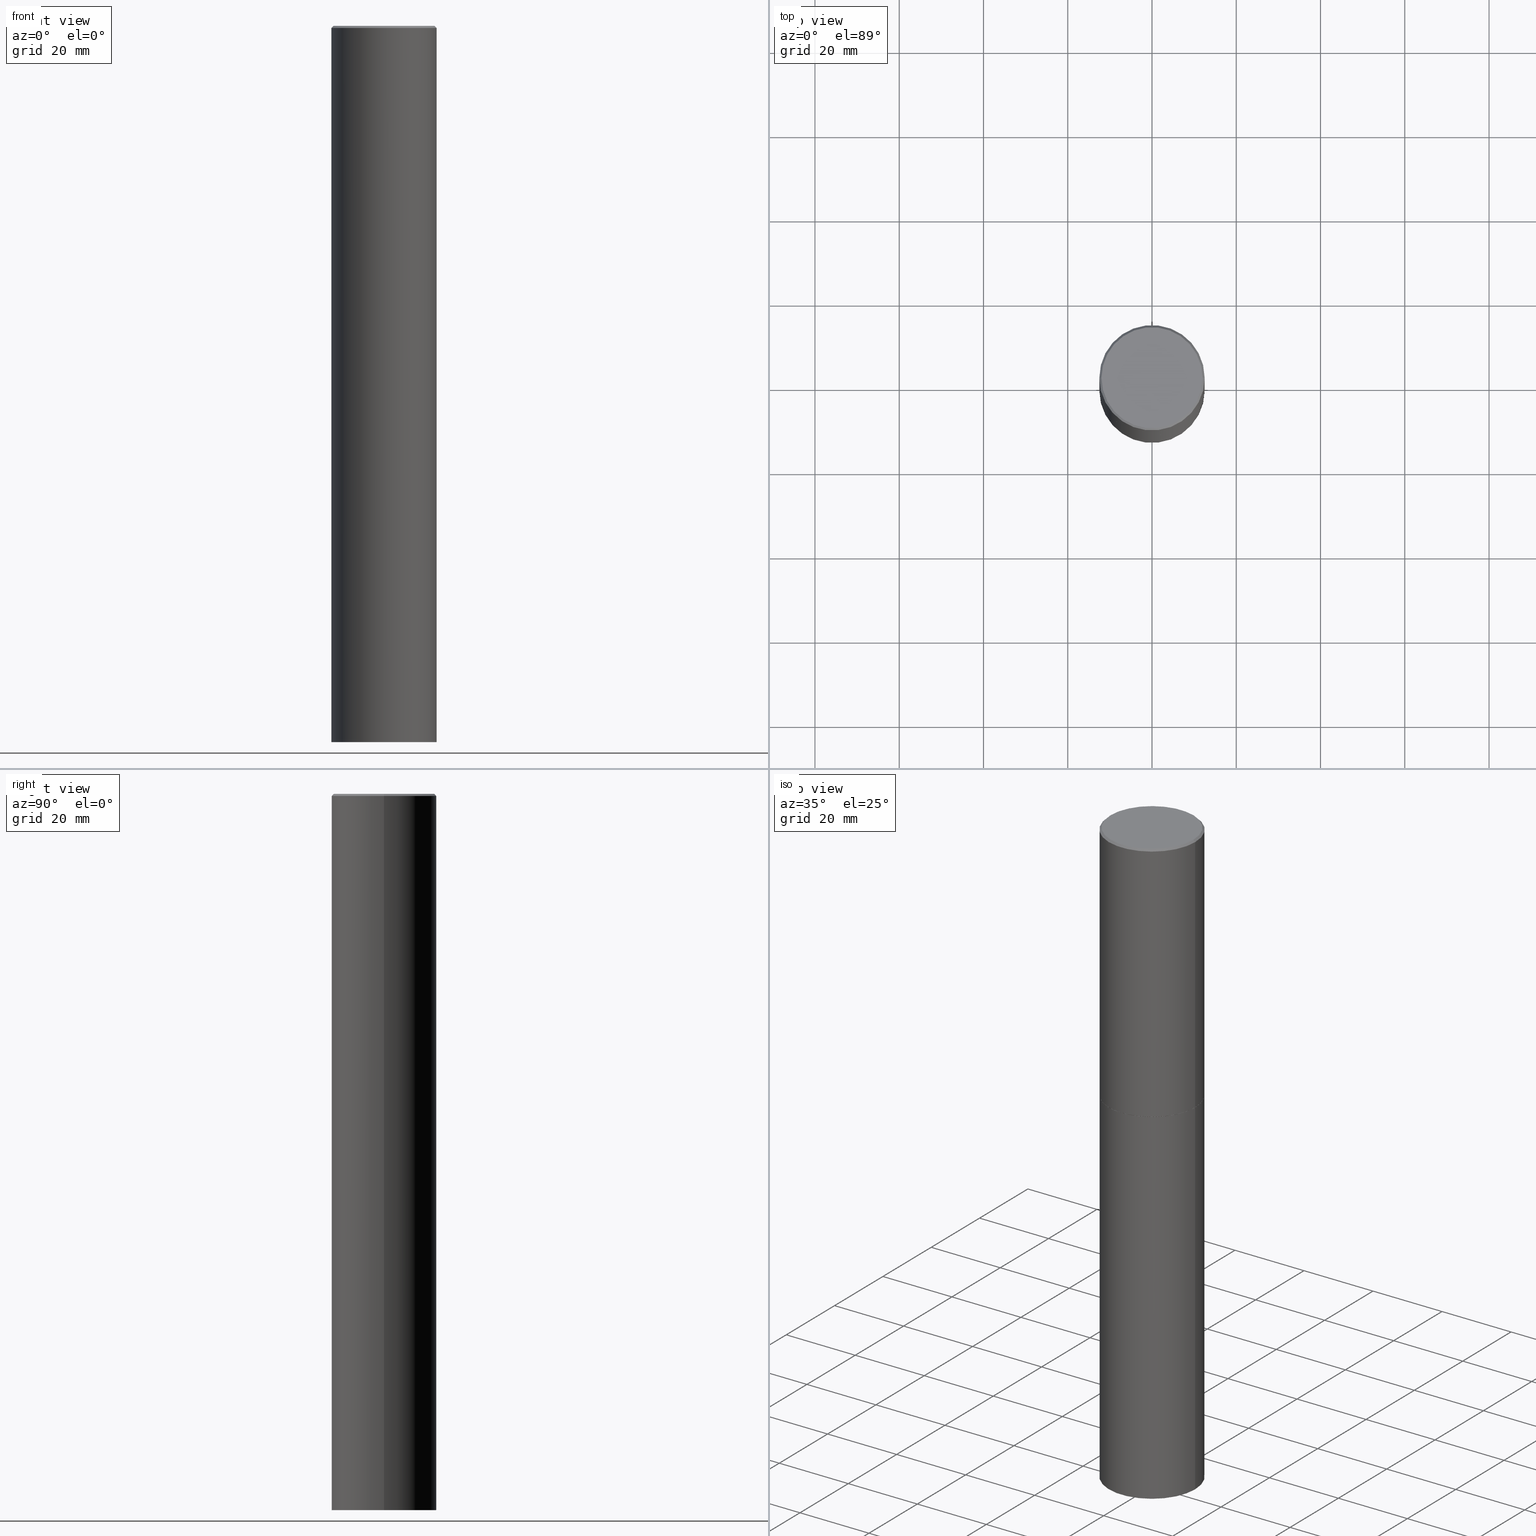
[diagram: canonical four-view strip — front | top / right | iso, engineering-drawing reading convention]
A machine part, canonical four-view strip (front | top / right | iso — engineering-drawing reading convention). The complete STEP part file that produces these views, byte-faithful:
ISO-10303-21;
HEADER;
FILE_DESCRIPTION (( 'STEP AP203' ),
    '1' );
FILE_NAME ('74899.STEP',
    '2024-05-03T15:04:47',
    ( '' ),
    ( '' ),
    'SwSTEP 2.0',
    'SolidWorks 2023',
    '' );
FILE_SCHEMA (( 'CONFIG_CONTROL_DESIGN' ));
ENDSEC;

DATA;
#1 = CC_DESIGN_DATE_AND_TIME_ASSIGNMENT ( #180, #98, ( #148 ) ) ;
#2 = DIRECTION ( 'NONE',  ( 1.000000000000000000, -6.982962677686265922E-15, 4.876176775795935793E-29 ) ) ;
#3 =( NAMED_UNIT ( * ) PLANE_ANGLE_UNIT ( ) SI_UNIT ( $, .RADIAN. ) );
#4 = VECTOR ( 'NONE', #146, 39.37007874015748143 ) ;
#5 = PERSON_AND_ORGANIZATION ( #172, #318 ) ;
#6 = LOCAL_TIME ( 11, 4, 47.00000000000000000, #315 ) ;
#7 = PERSON_AND_ORGANIZATION_ROLE ( 'design_owner' ) ;
#8 = CLOSED_SHELL ( 'NONE', ( #206, #88, #281, #259 ) ) ;
#9 = LINE ( 'NONE', #33, #362 ) ;
#10 = PERSON_AND_ORGANIZATION ( #172, #318 ) ;
#11 = DIRECTION ( 'NONE',  ( 1.000000000000000000, -6.982962677686268288E-15, 0.000000000000000000 ) ) ;
#12 = APPROVAL_STATUS ( 'not_yet_approved' ) ;
#13 = DATE_AND_TIME ( #263, #185 ) ;
#14 = APPROVAL_PERSON_ORGANIZATION ( #293, #177, #93 ) ;
#15 = CC_DESIGN_PERSON_AND_ORGANIZATION_ASSIGNMENT ( #122, #29, ( #96 ) ) ;
#16 = CARTESIAN_POINT ( 'NONE',  ( 0.4921499999999999764, -2.680480053456658516E-14, -6.692899999999999849 ) ) ;
#17 = VERTEX_POINT ( 'NONE', #343 ) ;
#18 = EDGE_LOOP ( 'NONE', ( #276, #35, #357, #208 ) ) ;
#19 = DIRECTION ( 'NONE',  ( -2.445468806185136597E-29, 3.491481338843145583E-15, 1.000000000000000000 ) ) ;
#20 = DIRECTION ( 'NONE',  ( -2.445468806185136597E-29, 3.491481338843145583E-15, 1.000000000000000000 ) ) ;
#21 = AXIS2_PLACEMENT_3D ( 'NONE', #224, #218, #308 ) ;
#22 = PRODUCT_DEFINITION_FORMATION_WITH_SPECIFIED_SOURCE ( 'ANY', '', #274, .NOT_KNOWN. ) ;
#23 = ORIENTED_EDGE ( 'NONE', *, *, #165, .F. ) ;
#24 = DIRECTION ( 'NONE',  ( -2.445468806185136597E-29, 3.491481338843145583E-15, 1.000000000000000000 ) ) ;
#25 = DATE_AND_TIME ( #331, #6 ) ;
#26 = EDGE_CURVE ( 'NONE', #77, #338, #210, .T. ) ;
#27 = VERTEX_POINT ( 'NONE', #129 ) ;
#28 = CARTESIAN_POINT ( 'NONE',  ( -0.4721499999999996255, 3.331920641657999252E-15, 8.537024980177643606E-18 ) ) ;
#29 = PERSON_AND_ORGANIZATION_ROLE ( 'classification_officer' ) ;
#30 = DIRECTION ( 'NONE',  ( -2.445468806185136597E-29, 3.491481338843145583E-15, 1.000000000000000000 ) ) ;
#31 = AXIS2_PLACEMENT_3D ( 'NONE', #283, #187, #245 ) ;
#32 = EDGE_CURVE ( 'NONE', #17, #118, #258, .T. ) ;
#33 = CARTESIAN_POINT ( 'NONE',  ( -0.4911499999999999755, -6.132342775032094079E-15, -2.755900000000000460 ) ) ;
#34 = DIRECTION ( 'NONE',  ( -2.445468806185136597E-29, 3.491481338843145583E-15, 1.000000000000000000 ) ) ;
#35 = ORIENTED_EDGE ( 'NONE', *, *, #82, .T. ) ;
#36 = VECTOR ( 'NONE', #95, 39.37007874015748143 ) ;
#37 = ORIENTED_EDGE ( 'NONE', *, *, #108, .T. ) ;
#38 = CC_DESIGN_DATE_AND_TIME_ASSIGNMENT ( #292, #68, ( #96 ) ) ;
#39 = AXIS2_PLACEMENT_3D ( 'NONE', #133, #284, #78 ) ;
#40 = CYLINDRICAL_SURFACE ( 'NONE', #50, 0.4921499999999999764 ) ;
#41 = SHAPE_DEFINITION_REPRESENTATION ( #335, #322 ) ;
#42 = APPROVAL_STATUS ( 'not_yet_approved' ) ;
#43 = CARTESIAN_POINT ( 'NONE',  ( 0.4921499999999998098, -3.436665081823294593E-15, 2.399810400207968762E-29 ) ) ;
#44 = DIRECTION ( 'NONE',  ( -1.000000000000000000, 6.982962677686265922E-15, 0.000000000000000000 ) ) ;
#45 = CARTESIAN_POINT ( 'NONE',  ( 4.890937612370296805E-31, -6.982962677686323656E-17, -0.02000000000000009409 ) ) ;
#46 = ADVANCED_FACE ( 'NONE', ( #326 ), #49, .F. ) ;
#47 = APPROVAL_ROLE ( '' ) ;
#48 = APPROVAL_ROLE ( '' ) ;
#49 = PLANE ( 'NONE',  #309 ) ;
#50 = AXIS2_PLACEMENT_3D ( 'NONE', #266, #319, #2 ) ;
#51 = ORIENTED_EDGE ( 'NONE', *, *, #103, .T. ) ;
#52 = DIRECTION ( 'NONE',  ( 1.000000000000000000, -6.982962677686265922E-15, 0.000000000000000000 ) ) ;
#53 = EDGE_LOOP ( 'NONE', ( #298, #296, #161, #242 ) ) ;
#54 = DIRECTION ( 'NONE',  ( -1.000000000000000000, 6.982962677686265922E-15, 0.000000000000000000 ) ) ;
#55 = EDGE_LOOP ( 'NONE', ( #211, #301, #324, #132 ) ) ;
#56 = CARTESIAN_POINT ( 'NONE',  ( 0.4911499999999999755, -1.305185554086343731E-14, -2.755900000000000460 ) ) ;
#57 = ADVANCED_FACE ( 'NONE', ( #297 ), #235, .T. ) ;
#58 = VECTOR ( 'NONE', #67, 39.37007874015748143 ) ;
#59 = CARTESIAN_POINT ( 'NONE',  ( 3.436665081823363224E-15, 0.4921499999999903174, -2.755900000000001793 ) ) ;
#60 = AXIS2_PLACEMENT_3D ( 'NONE', #97, #291, #182 ) ;
#61 = LENGTH_MEASURE_WITH_UNIT ( LENGTH_MEASURE( 0.02539999999999999897 ), #260 );
#62 = DIRECTION ( 'NONE',  ( -2.445468806185136877E-29, 3.491481338843145188E-15, 1.000000000000000000 ) ) ;
#63 = CARTESIAN_POINT ( 'NONE',  ( -0.4921499999999996988, 3.366835455046430506E-15, -0.02000000000000009409 ) ) ;
#64 = CC_DESIGN_PERSON_AND_ORGANIZATION_ASSIGNMENT ( #149, #7, ( #274 ) ) ;
#65 = CIRCLE ( 'NONE', #90, 0.4921499999999999764 ) ;
#66 = COORDINATED_UNIVERSAL_TIME_OFFSET ( 5, 0, .BEHIND. ) ;
#67 = DIRECTION ( 'NONE',  ( 0.7071067811865467956, -7.319954787623254468E-15, -0.7071067811865482389 ) ) ;
#68 = DATE_TIME_ROLE ( 'classification_date' ) ;
#69 = AXIS2_PLACEMENT_3D ( 'NONE', #196, #312, #44 ) ;
#70 = DIRECTION ( 'NONE',  ( 1.000000000000000000, -6.982962677686265922E-15, 0.000000000000000000 ) ) ;
#71 = VECTOR ( 'NONE', #164, 39.37007874015748143 ) ;
#72 = EDGE_LOOP ( 'NONE', ( #91, #106, #156, #134 ) ) ;
#73 = DIRECTION ( 'NONE',  ( -1.000000000000000000, 6.982962677686265922E-15, -4.876176775795935793E-29 ) ) ;
#74 = CC_DESIGN_PERSON_AND_ORGANIZATION_ASSIGNMENT ( #10, #119, ( #148 ) ) ;
#75 = DIRECTION ( 'NONE',  ( 1.000000000000000000, -6.982962677686265922E-15, 4.876006802227162976E-29 ) ) ;
#76 = DIRECTION ( 'NONE',  ( 1.000000000000000000, -6.982962677686268288E-15, 0.000000000000000000 ) ) ;
#77 = VERTEX_POINT ( 'NONE', #16 ) ;
#78 = DIRECTION ( 'NONE',  ( 1.000000000000000000, -6.982962677686265922E-15, 0.000000000000000000 ) ) ;
#79 = APPLICATION_CONTEXT ( 'configuration controlled 3d designs of mechanical parts and assemblies' ) ;
#80 = EDGE_LOOP ( 'NONE', ( #154, #286 ) ) ;
#81 = DIRECTION ( 'NONE',  ( -1.000000000000000000, 6.982962677686265922E-15, -4.876176775795935793E-29 ) ) ;
#82 = EDGE_CURVE ( 'NONE', #17, #160, #127, .T. ) ;
#83 = ORIENTED_EDGE ( 'NONE', *, *, #194, .T. ) ;
#84 = DIRECTION ( 'NONE',  ( -2.445468806185136597E-29, 3.491481338843145583E-15, 1.000000000000000000 ) ) ;
#85 = AXIS2_PLACEMENT_3D ( 'NONE', #323, #352, #99 ) ;
#86 = EDGE_CURVE ( 'NONE', #160, #231, #327, .T. ) ;
#87 = DIMENSIONAL_EXPONENTS ( 1.000000000000000000, 0.000000000000000000, 0.000000000000000000, 0.000000000000000000, 0.000000000000000000, 0.000000000000000000, 0.000000000000000000 ) ;
#88 = ADVANCED_FACE ( 'NONE', ( #123 ), #351, .T. ) ;
#89 = MANIFOLD_SOLID_BREP ( 'Body-Move/Copy2[1]', #8 ) ;
#90 = AXIS2_PLACEMENT_3D ( 'NONE', #140, #34, #143 ) ;
#91 = ORIENTED_EDGE ( 'NONE', *, *, #320, .T. ) ;
#92 = DIRECTION ( 'NONE',  ( -2.445468806185136597E-29, 3.491481338843145583E-15, 1.000000000000000000 ) ) ;
#93 = APPROVAL_ROLE ( '' ) ;
#94 = CALENDAR_DATE ( 2024, 3, 5 ) ;
#95 = DIRECTION ( 'NONE',  ( -2.445468806185136877E-29, 3.491481338843145188E-15, 1.000000000000000000 ) ) ;
#96 = SECURITY_CLASSIFICATION ( '', '', #205 ) ;
#97 = CARTESIAN_POINT ( 'NONE',  ( 6.737022014159432629E-29, -9.618681940378981383E-15, -2.754900000000000126 ) ) ;
#98 = DATE_TIME_ROLE ( 'creation_date' ) ;
#99 = DIRECTION ( 'NONE',  ( -1.000000000000000000, 6.982962677686265922E-15, -4.876176775795935793E-29 ) ) ;
#100 = EDGE_CURVE ( 'NONE', #110, #282, #158, .T. ) ;
#101 = EDGE_LOOP ( 'NONE', ( #306, #83, #271, #356 ) ) ;
#102 = DIRECTION ( 'NONE',  ( -2.438088387897960049E-29, 3.491481338843145188E-15, 1.000000000000000000 ) ) ;
#103 = EDGE_CURVE ( 'NONE', #77, #282, #214, .T. ) ;
#104 = ORIENTED_EDGE ( 'NONE', *, *, #26, .T. ) ;
#105 = CARTESIAN_POINT ( 'NONE',  ( -0.4921499999999999764, -1.299821836318722399E-14, -6.692899999999999849 ) ) ;
#106 = ORIENTED_EDGE ( 'NONE', *, *, #181, .T. ) ;
#107 = EDGE_LOOP ( 'NONE', ( #363, #222, #37, #23 ) ) ;
#108 = EDGE_CURVE ( 'NONE', #231, #160, #152, .T. ) ;
#109 = AXIS2_PLACEMENT_3D ( 'NONE', #234, #92, #70 ) ;
#110 = VERTEX_POINT ( 'NONE', #305 ) ;
#111 = CARTESIAN_POINT ( 'NONE',  ( 0.4921499999999999764, -1.305534702220227716E-14, -2.754900000000000126 ) ) ;
#112 = FACE_OUTER_BOUND ( 'NONE', #278, .T. ) ;
#113 = ADVANCED_FACE ( 'NONE', ( #135 ), #163, .T. ) ;
#114 = MECHANICAL_CONTEXT ( 'NONE', #79, 'mechanical' ) ;
#115 = PERSON_AND_ORGANIZATION ( #172, #318 ) ;
#116 = APPLICATION_PROTOCOL_DEFINITION ( 'international standard', 'config_control_design', 1994, #366 ) ;
#117 = VECTOR ( 'NONE', #344, 39.37007874015748143 ) ;
#118 = VERTEX_POINT ( 'NONE', #111 ) ;
#119 = PERSON_AND_ORGANIZATION_ROLE ( 'creator' ) ;
#120 = LINE ( 'NONE', #174, #4 ) ;
#121 = ADVANCED_FACE ( 'NONE', ( #256 ), #317, .T. ) ;
#122 = PERSON_AND_ORGANIZATION ( #172, #318 ) ;
#123 = FACE_OUTER_BOUND ( 'NONE', #332, .T. ) ;
#124 = APPROVAL_STATUS ( 'not_yet_approved' ) ;
#125 = APPROVAL_DATE_TIME ( #295, #216 ) ;
#126 = EDGE_CURVE ( 'NONE', #153, #27, #239, .T. ) ;
#127 = LINE ( 'NONE', #267, #36 ) ;
#128 = VERTEX_POINT ( 'NONE', #285 ) ;
#129 = CARTESIAN_POINT ( 'NONE',  ( 0.4721499999999996255, -3.342703923013973396E-15, 8.537024980224040028E-18 ) ) ;
#130 = ORIENTED_EDGE ( 'NONE', *, *, #193, .F. ) ;
#131 = CARTESIAN_POINT ( 'NONE',  ( 0.000000000000000000, 0.000000000000000000, 0.000000000000000000 ) ) ;
#132 = ORIENTED_EDGE ( 'NONE', *, *, #86, .F. ) ;
#133 = CARTESIAN_POINT ( 'NONE',  ( 4.890937612370296805E-31, -6.982962677686323656E-17, -0.02000000000000009409 ) ) ;
#134 = ORIENTED_EDGE ( 'NONE', *, *, #349, .F. ) ;
#135 = FACE_OUTER_BOUND ( 'NONE', #53, .T. ) ;
#136 = CIRCLE ( 'NONE', #31, 0.4911499999999999755 ) ;
#137 = CC_DESIGN_APPROVAL ( #216, ( #96 ) ) ;
#138 = CARTESIAN_POINT ( 'NONE',  ( 6.739467482965619353E-29, -9.622173421717825968E-15, -2.755900000000000460 ) ) ;
#139 =( CONVERSION_BASED_UNIT ( 'INCH', #61 ) LENGTH_UNIT ( ) NAMED_UNIT ( #87 ) );
#140 = CARTESIAN_POINT ( 'NONE',  ( 6.739467482965618232E-29, -9.622173421717824390E-15, -2.755900000000000016 ) ) ;
#141 = ADVANCED_FACE ( 'NONE', ( #342 ), #313, .T. ) ;
#142 = DIRECTION ( 'NONE',  ( 0.000000000000000000, 0.000000000000000000, 1.000000000000000000 ) ) ;
#143 = DIRECTION ( 'NONE',  ( 1.000000000000000000, -6.982962677686265922E-15, 0.000000000000000000 ) ) ;
#144 = AXIS2_PLACEMENT_3D ( 'NONE', #279, #223, #250 ) ;
#145 = LOCAL_TIME ( 11, 4, 47.00000000000000000, #179 ) ;
#146 = DIRECTION ( 'NONE',  ( -2.445468806185136877E-29, 3.491481338843145188E-15, 1.000000000000000000 ) ) ;
#147 = ORIENTED_EDGE ( 'NONE', *, *, #169, .T. ) ;
#148 = PRODUCT_DEFINITION ( 'UNKNOWN', '', #22, #325 ) ;
#149 = PERSON_AND_ORGANIZATION ( #172, #318 ) ;
#150 = ADVANCED_FACE ( 'NONE', ( #300 ), #157, .T. ) ;
#151 = CALENDAR_DATE ( 2024, 3, 5 ) ;
#152 = CIRCLE ( 'NONE', #39, 0.4921499999999996988 ) ;
#153 = VERTEX_POINT ( 'NONE', #28 ) ;
#154 = ORIENTED_EDGE ( 'NONE', *, *, #320, .F. ) ;
#155 = CARTESIAN_POINT ( 'NONE',  ( 6.737022014159432629E-29, -9.618681940378981383E-15, -2.754900000000000126 ) ) ;
#156 = ORIENTED_EDGE ( 'NONE', *, *, #264, .F. ) ;
#157 = CYLINDRICAL_SURFACE ( 'NONE', #170, 0.4921499999999998098 ) ;
#158 = CIRCLE ( 'NONE', #265, 0.4921499999999999764 ) ;
#159 = APPROVAL_PERSON_ORGANIZATION ( #241, #287, #48 ) ;
#160 = VERTEX_POINT ( 'NONE', #310 ) ;
#161 = ORIENTED_EDGE ( 'NONE', *, *, #165, .T. ) ;
#162 = FACE_OUTER_BOUND ( 'NONE', #212, .T. ) ;
#163 = CONICAL_SURFACE ( 'NONE', #270, 0.4921499999999996988, 0.7853981633974472798 ) ;
#164 = DIRECTION ( 'NONE',  ( 0.7071067811864267805, -2.468850131080992517E-15, 0.7071067811866682540 ) ) ;
#165 = EDGE_CURVE ( 'NONE', #153, #160, #347, .T. ) ;
#166 = CARTESIAN_POINT ( 'NONE',  ( 0.4921499999999996988, -3.446223716380120377E-15, -0.02000000000000009409 ) ) ;
#167 = APPLICATION_PROTOCOL_DEFINITION ( 'international standard', 'config_control_design', 1994, #79 ) ;
#168 = APPROVAL_DATE_TIME ( #25, #177 ) ;
#169 = EDGE_CURVE ( 'NONE', #338, #110, #120, .T. ) ;
#170 = AXIS2_PLACEMENT_3D ( 'NONE', #131, #189, #280 ) ;
#171 = VECTOR ( 'NONE', #336, 39.37007874015748143 ) ;
#172 = PERSON ( 'UNSPECIFIED', 'UNSPECIFIED', 'UNSPECIFIED', ('UNSPECIFIED'), ('UNSPECIFIED'), ('UNSPECIFIED') ) ;
#173 = APPROVAL_DATE_TIME ( #13, #287 ) ;
#174 = CARTESIAN_POINT ( 'NONE',  ( -0.4921499999999999764, 3.496936074043332897E-15, -2.420853904668951509E-29 ) ) ;
#175 = AXIS2_PLACEMENT_3D ( 'NONE', #138, #20, #76 ) ;
#176 = CALENDAR_DATE ( 2024, 3, 5 ) ;
#177 = APPROVAL ( #124, 'UNSPECIFIED' ) ;
#178 = CARTESIAN_POINT ( 'NONE',  ( 0.4911499999999999755, -1.305185554086343731E-14, -2.755900000000000460 ) ) ;
#179 = COORDINATED_UNIVERSAL_TIME_OFFSET ( 5, 0, .BEHIND. ) ;
#180 = DATE_AND_TIME ( #94, #254 ) ;
#181 = EDGE_CURVE ( 'NONE', #128, #17, #9, .T. ) ;
#182 = DIRECTION ( 'NONE',  ( 1.000000000000000000, -6.982962677686265922E-15, 0.000000000000000000 ) ) ;
#183 = CLOSED_SHELL ( 'NONE', ( #141, #57, #232, #113, #150, #121, #46, #311 ) ) ;
#184 = AXIS2_PLACEMENT_3D ( 'NONE', #201, #272, #330 ) ;
#185 = LOCAL_TIME ( 11, 4, 47.00000000000000000, #66 ) ;
#186 = COORDINATED_UNIVERSAL_TIME_OFFSET ( 5, 0, .BEHIND. ) ;
#187 = DIRECTION ( 'NONE',  ( -2.445468806185136597E-29, 3.491481338843145583E-15, 1.000000000000000000 ) ) ;
#188 = CARTESIAN_POINT ( 'NONE',  ( 6.739467482965618232E-29, -9.622173421717824390E-15, -2.755900000000000016 ) ) ;
#189 = DIRECTION ( 'NONE',  ( -2.445468806185136597E-29, 3.491481338843145583E-15, 1.000000000000000000 ) ) ;
#190 = CC_DESIGN_PERSON_AND_ORGANIZATION_ASSIGNMENT ( #5, #261, ( #22 ) ) ;
#191 = CIRCLE ( 'NONE', #195, 0.4921499999999999764 ) ;
#192 = DIRECTION ( 'NONE',  ( 2.438088387897960049E-29, -3.491481338843145188E-15, -1.000000000000000000 ) ) ;
#193 = EDGE_CURVE ( 'NONE', #282, #110, #65, .T. ) ;
#194 = EDGE_CURVE ( 'NONE', #128, #219, #197, .T. ) ;
#195 = AXIS2_PLACEMENT_3D ( 'NONE', #220, #30, #52 ) ;
#196 = CARTESIAN_POINT ( 'NONE',  ( 4.890937612370296805E-31, -6.982962677686323656E-17, -0.02000000000000009409 ) ) ;
#197 = CIRCLE ( 'NONE', #346, 0.4911499999999999755 ) ;
#198 = APPROVAL_PERSON_ORGANIZATION ( #237, #216, #47 ) ;
#199 = EDGE_CURVE ( 'NONE', #27, #231, #348, .T. ) ;
#200 = COORDINATED_UNIVERSAL_TIME_OFFSET ( 5, 0, .BEHIND. ) ;
#201 = CARTESIAN_POINT ( 'NONE',  ( 0.000000000000000000, 0.000000000000000000, 0.000000000000000000 ) ) ;
#202 = DIRECTION ( 'NONE',  ( -2.445468806185136597E-29, 3.491481338843145583E-15, 1.000000000000000000 ) ) ;
#203 = AXIS2_PLACEMENT_3D ( 'NONE', #361, #84, #248 ) ;
#204 = CC_DESIGN_APPROVAL ( #177, ( #22 ) ) ;
#205 = SECURITY_CLASSIFICATION_LEVEL ( 'unclassified' ) ;
#206 = ADVANCED_FACE ( 'NONE', ( #112 ), #40, .T. ) ;
#207 = CARTESIAN_POINT ( 'NONE',  ( 6.739467482965618232E-29, -9.622173421717824390E-15, -2.755900000000000016 ) ) ;
#208 = ORIENTED_EDGE ( 'NONE', *, *, #225, .F. ) ;
#209 = ORIENTED_EDGE ( 'NONE', *, *, #100, .T. ) ;
#210 = CIRCLE ( 'NONE', #109, 0.4921499999999999764 ) ;
#211 = ORIENTED_EDGE ( 'NONE', *, *, #82, .F. ) ;
#212 = EDGE_LOOP ( 'NONE', ( #353, #209 ) ) ;
#213 = PLANE ( 'NONE',  #294 ) ;
#214 = LINE ( 'NONE', #340, #171 ) ;
#215 = ORIENTED_EDGE ( 'NONE', *, *, #26, .F. ) ;
#216 = APPROVAL ( #12, 'UNSPECIFIED' ) ;
#217 = DIRECTION ( 'NONE',  ( 2.438088387897960049E-29, -3.491481338843145188E-15, -1.000000000000000000 ) ) ;
#218 = DIRECTION ( 'NONE',  ( -2.445468806185136597E-29, 3.491481338843145583E-15, 1.000000000000000000 ) ) ;
#219 = VERTEX_POINT ( 'NONE', #178 ) ;
#220 = CARTESIAN_POINT ( 'NONE',  ( 1.636727817291649966E-28, -2.336813545274328780E-14, -6.692899999999999849 ) ) ;
#221 = DIRECTION ( 'NONE',  ( 2.445468806185136597E-29, -3.491481338843145583E-15, -1.000000000000000000 ) ) ;
#222 = ORIENTED_EDGE ( 'NONE', *, *, #199, .T. ) ;
#223 = DIRECTION ( 'NONE',  ( -2.445468806185136597E-29, 3.491481338843145583E-15, 1.000000000000000000 ) ) ;
#224 = CARTESIAN_POINT ( 'NONE',  ( 6.739467482965619353E-29, -9.622173421717825968E-15, -2.755900000000000460 ) ) ;
#225 = EDGE_CURVE ( 'NONE', #118, #231, #268, .T. ) ;
#226 = FACE_OUTER_BOUND ( 'NONE', #107, .T. ) ;
#227 = AXIS2_PLACEMENT_3D ( 'NONE', #307, #334, #75 ) ;
#228 = LOCAL_TIME ( 11, 4, 47.00000000000000000, #186 ) ;
#229 = DIRECTION ( 'NONE',  ( 1.000000000000000000, 0.000000000000000000, 0.000000000000000000 ) ) ;
#230 = PERSON_AND_ORGANIZATION_ROLE ( 'design_supplier' ) ;
#231 = VERTEX_POINT ( 'NONE', #166 ) ;
#232 = ADVANCED_FACE ( 'NONE', ( #226 ), #302, .T. ) ;
#233 = CIRCLE ( 'NONE', #227, 0.4721499999999996255 ) ;
#234 = CARTESIAN_POINT ( 'NONE',  ( 1.636727817291649966E-28, -2.336813545274328780E-14, -6.692899999999999849 ) ) ;
#235 = CYLINDRICAL_SURFACE ( 'NONE', #184, 0.4921499999999998098 ) ;
#236 = DIRECTION ( 'NONE',  ( -0.7071067811864267805, 7.493145998869918709E-15, 0.7071067811866682540 ) ) ;
#237 = PERSON_AND_ORGANIZATION ( #172, #318 ) ;
#238 = DIRECTION ( 'NONE',  ( 1.000000000000000000, -6.982962677686265922E-15, 4.876176775795935793E-29 ) ) ;
#239 = CIRCLE ( 'NONE', #203, 0.4721499999999996255 ) ;
#240 = ORIENTED_EDGE ( 'NONE', *, *, #100, .F. ) ;
#241 = PERSON_AND_ORGANIZATION ( #172, #318 ) ;
#242 = ORIENTED_EDGE ( 'NONE', *, *, #86, .T. ) ;
#243 = DIRECTION ( 'NONE',  ( 1.000000000000000000, -6.982962677686265922E-15, 0.000000000000000000 ) ) ;
#244 = AXIS2_PLACEMENT_3D ( 'NONE', #45, #321, #269 ) ;
#245 = DIRECTION ( 'NONE',  ( 1.000000000000000000, -6.982962677686268288E-15, 0.000000000000000000 ) ) ;
#246 = CARTESIAN_POINT ( 'NONE',  ( 4.890937612370296805E-31, -6.982962677686323656E-17, -0.02000000000000009409 ) ) ;
#247 = ORIENTED_EDGE ( 'NONE', *, *, #103, .F. ) ;
#248 = DIRECTION ( 'NONE',  ( 1.000000000000000000, -6.982962677686265922E-15, 4.876006802227162976E-29 ) ) ;
#249 = ORIENTED_EDGE ( 'NONE', *, *, #126, .T. ) ;
#250 = DIRECTION ( 'NONE',  ( 1.000000000000000000, -6.982962677686265922E-15, 4.876176775795935793E-29 ) ) ;
#251 = EDGE_LOOP ( 'NONE', ( #249, #333 ) ) ;
#252 = CC_DESIGN_PERSON_AND_ORGANIZATION_ASSIGNMENT ( #115, #230, ( #22 ) ) ;
#253 = VECTOR ( 'NONE', #62, 39.37007874015748143 ) ;
#254 = LOCAL_TIME ( 11, 4, 47.00000000000000000, #200 ) ;
#255 =( NAMED_UNIT ( * ) SI_UNIT ( $, .STERADIAN. ) SOLID_ANGLE_UNIT ( ) );
#256 = FACE_OUTER_BOUND ( 'NONE', #101, .T. ) ;
#257 = CARTESIAN_POINT ( 'NONE',  ( 0.000000000000000000, 0.000000000000000000, 0.000000000000000000 ) ) ;
#258 = CIRCLE ( 'NONE', #60, 0.4921499999999999764 ) ;
#259 = ADVANCED_FACE ( 'NONE', ( #364 ), #277, .T. ) ;
#260 =( LENGTH_UNIT ( ) NAMED_UNIT ( * ) SI_UNIT ( $, .METRE. ) );
#261 = PERSON_AND_ORGANIZATION_ROLE ( 'creator' ) ;
#262 = ORIENTED_EDGE ( 'NONE', *, *, #275, .T. ) ;
#263 = CALENDAR_DATE ( 2024, 3, 5 ) ;
#264 = EDGE_CURVE ( 'NONE', #118, #17, #350, .T. ) ;
#265 = AXIS2_PLACEMENT_3D ( 'NONE', #207, #24, #365 ) ;
#266 = CARTESIAN_POINT ( 'NONE',  ( 0.000000000000000000, 0.000000000000000000, 0.000000000000000000 ) ) ;
#267 = CARTESIAN_POINT ( 'NONE',  ( -0.4921499999999998098, 3.496936074043331714E-15, -2.420853904668950949E-29 ) ) ;
#268 = LINE ( 'NONE', #43, #253 ) ;
#269 = DIRECTION ( 'NONE',  ( 1.000000000000000000, -6.982962677686265922E-15, 0.000000000000000000 ) ) ;
#270 = AXIS2_PLACEMENT_3D ( 'NONE', #246, #221, #54 ) ;
#271 = ORIENTED_EDGE ( 'NONE', *, *, #349, .T. ) ;
#272 = DIRECTION ( 'NONE',  ( -2.445468806185136597E-29, 3.491481338843145583E-15, 1.000000000000000000 ) ) ;
#273 = EDGE_LOOP ( 'NONE', ( #359, #262, #51, #240 ) ) ;
#274 = PRODUCT ( '74899', '74899', '', ( #114 ) ) ;
#275 = EDGE_CURVE ( 'NONE', #338, #77, #191, .T. ) ;
#276 = ORIENTED_EDGE ( 'NONE', *, *, #264, .T. ) ;
#277 = CYLINDRICAL_SURFACE ( 'NONE', #144, 0.4921499999999999764 ) ;
#278 = EDGE_LOOP ( 'NONE', ( #104, #147, #130, #247 ) ) ;
#279 = CARTESIAN_POINT ( 'NONE',  ( 0.000000000000000000, 0.000000000000000000, 0.000000000000000000 ) ) ;
#280 = DIRECTION ( 'NONE',  ( 1.000000000000000000, -6.982962677686265922E-15, 4.876176775795935793E-29 ) ) ;
#281 = ADVANCED_FACE ( 'NONE', ( #162 ), #354, .F. ) ;
#282 = VERTEX_POINT ( 'NONE', #329 ) ;
#283 = CARTESIAN_POINT ( 'NONE',  ( 6.739467482965619353E-29, -9.622173421717825968E-15, -2.755900000000000460 ) ) ;
#284 = DIRECTION ( 'NONE',  ( -2.445468806185136597E-29, 3.491481338843145583E-15, 1.000000000000000000 ) ) ;
#285 = CARTESIAN_POINT ( 'NONE',  ( -0.4911499999999999755, -6.127044320683872466E-15, -2.755900000000000460 ) ) ;
#286 = ORIENTED_EDGE ( 'NONE', *, *, #194, .F. ) ;
#287 = APPROVAL ( #42, 'UNSPECIFIED' ) ;
#288 = AXIS2_PLACEMENT_3D ( 'NONE', #59, #217, #81 ) ;
#289 = CARTESIAN_POINT ( 'NONE',  ( 0.4921499999999996988, -3.446223716380120377E-15, -0.02000000000000009409 ) ) ;
#290 = UNCERTAINTY_MEASURE_WITH_UNIT (LENGTH_MEASURE( 1.000000000000000082E-05 ), #139, 'distance_accuracy_value', 'NONE');
#291 = DIRECTION ( 'NONE',  ( -2.445468806185136597E-29, 3.491481338843145583E-15, 1.000000000000000000 ) ) ;
#292 = DATE_AND_TIME ( #176, #228 ) ;
#293 = PERSON_AND_ORGANIZATION ( #172, #318 ) ;
#294 = AXIS2_PLACEMENT_3D ( 'NONE', #358, #192, #73 ) ;
#295 = DATE_AND_TIME ( #151, #145 ) ;
#296 = ORIENTED_EDGE ( 'NONE', *, *, #126, .F. ) ;
#297 = FACE_OUTER_BOUND ( 'NONE', #18, .T. ) ;
#298 = ORIENTED_EDGE ( 'NONE', *, *, #199, .F. ) ;
#299 = LINE ( 'NONE', #56, #71 ) ;
#300 = FACE_OUTER_BOUND ( 'NONE', #55, .T. ) ;
#301 = ORIENTED_EDGE ( 'NONE', *, *, #32, .T. ) ;
#302 = CONICAL_SURFACE ( 'NONE', #69, 0.4921499999999996988, 0.7853981633974472798 ) ;
#303 = FACE_OUTER_BOUND ( 'NONE', #251, .T. ) ;
#304 = CC_DESIGN_APPROVAL ( #287, ( #148 ) ) ;
#305 = CARTESIAN_POINT ( 'NONE',  ( -0.4921499999999999764, -1.299821836318722399E-14, -2.755900000000000016 ) ) ;
#306 = ORIENTED_EDGE ( 'NONE', *, *, #181, .F. ) ;
#307 = CARTESIAN_POINT ( 'NONE',  ( -2.087702828670439639E-46, 2.980686340760894400E-32, 8.537024980200822558E-18 ) ) ;
#308 = DIRECTION ( 'NONE',  ( 1.000000000000000000, -6.982962677686268288E-15, 0.000000000000000000 ) ) ;
#309 = AXIS2_PLACEMENT_3D ( 'NONE', #188, #102, #238 ) ;
#310 = CARTESIAN_POINT ( 'NONE',  ( -0.4921499999999996988, 3.366835455046430506E-15, -0.02000000000000009409 ) ) ;
#311 = ADVANCED_FACE ( 'NONE', ( #303 ), #213, .F. ) ;
#312 = DIRECTION ( 'NONE',  ( 2.445468806185136597E-29, -3.491481338843145583E-15, -1.000000000000000000 ) ) ;
#313 = CONICAL_SURFACE ( 'NONE', #175, 0.4911499999999999755, 0.7853981633972775267 ) ;
#314 = CC_DESIGN_SECURITY_CLASSIFICATION ( #96, ( #22 ) ) ;
#315 = COORDINATED_UNIVERSAL_TIME_OFFSET ( 5, 0, .BEHIND. ) ;
#316 = CARTESIAN_POINT ( 'NONE',  ( 6.739467482965619353E-29, -9.622173421717825968E-15, -2.755900000000000460 ) ) ;
#317 = CONICAL_SURFACE ( 'NONE', #21, 0.4911499999999999755, 0.7853981633972775267 ) ;
#318 = ORGANIZATION ( 'UNSPECIFIED', 'UNSPECIFIED', '' ) ;
#319 = DIRECTION ( 'NONE',  ( -2.445468806185136597E-29, 3.491481338843145583E-15, 1.000000000000000000 ) ) ;
#320 = EDGE_CURVE ( 'NONE', #219, #128, #136, .T. ) ;
#321 = DIRECTION ( 'NONE',  ( -2.445468806185136597E-29, 3.491481338843145583E-15, 1.000000000000000000 ) ) ;
#322 = ADVANCED_BREP_SHAPE_REPRESENTATION ( '74899', ( #89, #328, #337 ), #339 ) ;
#323 = CARTESIAN_POINT ( 'NONE',  ( 3.436665081823459465E-15, 0.4921499999999766062, -6.692900000000002514 ) ) ;
#324 = ORIENTED_EDGE ( 'NONE', *, *, #225, .T. ) ;
#325 = DESIGN_CONTEXT ( 'detailed design', #366, 'design' ) ;
#326 = FACE_OUTER_BOUND ( 'NONE', #80, .T. ) ;
#327 = CIRCLE ( 'NONE', #244, 0.4921499999999996988 ) ;
#328 = MANIFOLD_SOLID_BREP ( 'Body-Move/Copy2[2]', #183 ) ;
#329 = CARTESIAN_POINT ( 'NONE',  ( 0.4921499999999999764, -1.305883850354112017E-14, -2.755900000000000016 ) ) ;
#330 = DIRECTION ( 'NONE',  ( 1.000000000000000000, -6.982962677686265922E-15, 4.876176775795935793E-29 ) ) ;
#331 = CALENDAR_DATE ( 2024, 3, 5 ) ;
#332 = EDGE_LOOP ( 'NONE', ( #215, #341 ) ) ;
#333 = ORIENTED_EDGE ( 'NONE', *, *, #345, .T. ) ;
#334 = DIRECTION ( 'NONE',  ( -2.445468806185136597E-29, 3.491481338843145583E-15, 1.000000000000000000 ) ) ;
#335 = PRODUCT_DEFINITION_SHAPE ( 'NONE', 'NONE',  #148 ) ;
#336 = DIRECTION ( 'NONE',  ( -2.445468806185136877E-29, 3.491481338843145188E-15, 1.000000000000000000 ) ) ;
#337 = AXIS2_PLACEMENT_3D ( 'NONE', #257, #142, #229 ) ;
#338 = VERTEX_POINT ( 'NONE', #105 ) ;
#339 =( GEOMETRIC_REPRESENTATION_CONTEXT ( 3 ) GLOBAL_UNCERTAINTY_ASSIGNED_CONTEXT ( ( #290 ) ) GLOBAL_UNIT_ASSIGNED_CONTEXT ( ( #139, #3, #255 ) ) REPRESENTATION_CONTEXT ( 'NONE', 'WORKASPACE' ) );
#340 = CARTESIAN_POINT ( 'NONE',  ( 0.4921499999999999764, -3.436665081823295777E-15, 2.399810400207969603E-29 ) ) ;
#341 = ORIENTED_EDGE ( 'NONE', *, *, #275, .F. ) ;
#342 = FACE_OUTER_BOUND ( 'NONE', #72, .T. ) ;
#343 = CARTESIAN_POINT ( 'NONE',  ( -0.4921499999999999764, -1.347319709534588852E-15, -2.754900000000000126 ) ) ;
#344 = DIRECTION ( 'NONE',  ( -0.7071067811865467956, 2.468850131082249172E-15, -0.7071067811865482389 ) ) ;
#345 = EDGE_CURVE ( 'NONE', #27, #153, #233, .T. ) ;
#346 = AXIS2_PLACEMENT_3D ( 'NONE', #316, #202, #11 ) ;
#347 = LINE ( 'NONE', #63, #117 ) ;
#348 = LINE ( 'NONE', #289, #58 ) ;
#349 = EDGE_CURVE ( 'NONE', #219, #118, #299, .T. ) ;
#350 = CIRCLE ( 'NONE', #355, 0.4921499999999999764 ) ;
#351 = PLANE ( 'NONE',  #85 ) ;
#352 = DIRECTION ( 'NONE',  ( 2.438088387897960049E-29, -3.491481338843145188E-15, -1.000000000000000000 ) ) ;
#353 = ORIENTED_EDGE ( 'NONE', *, *, #193, .T. ) ;
#354 = PLANE ( 'NONE',  #288 ) ;
#355 = AXIS2_PLACEMENT_3D ( 'NONE', #155, #19, #243 ) ;
#356 = ORIENTED_EDGE ( 'NONE', *, *, #32, .F. ) ;
#357 = ORIENTED_EDGE ( 'NONE', *, *, #108, .F. ) ;
#358 = CARTESIAN_POINT ( 'NONE',  ( 3.297005828269567997E-15, 0.4721499999999996255, -1.644234401644689488E-15 ) ) ;
#359 = ORIENTED_EDGE ( 'NONE', *, *, #169, .F. ) ;
#360 = PRODUCT_RELATED_PRODUCT_CATEGORY ( 'detail', '', ( #274 ) ) ;
#361 = CARTESIAN_POINT ( 'NONE',  ( -2.087702828670439639E-46, 2.980686340760894400E-32, 8.537024980200822558E-18 ) ) ;
#362 = VECTOR ( 'NONE', #236, 39.37007874015748143 ) ;
#363 = ORIENTED_EDGE ( 'NONE', *, *, #345, .F. ) ;
#364 = FACE_OUTER_BOUND ( 'NONE', #273, .T. ) ;
#365 = DIRECTION ( 'NONE',  ( 1.000000000000000000, -6.982962677686265922E-15, 0.000000000000000000 ) ) ;
#366 = APPLICATION_CONTEXT ( 'configuration controlled 3d designs of mechanical parts and assemblies' ) ;
ENDSEC;
END-ISO-10303-21;
